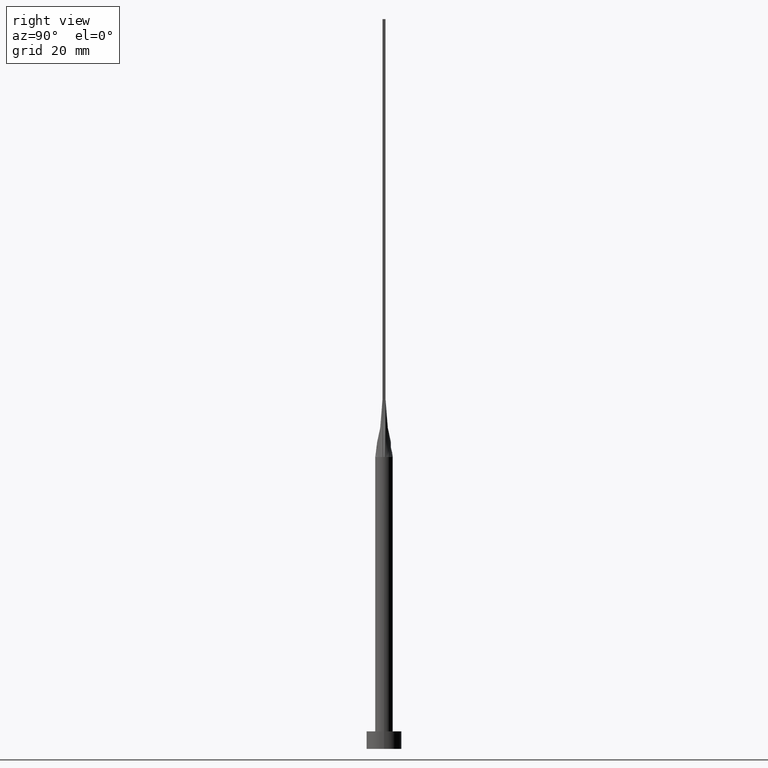
[diagram: clean part render]
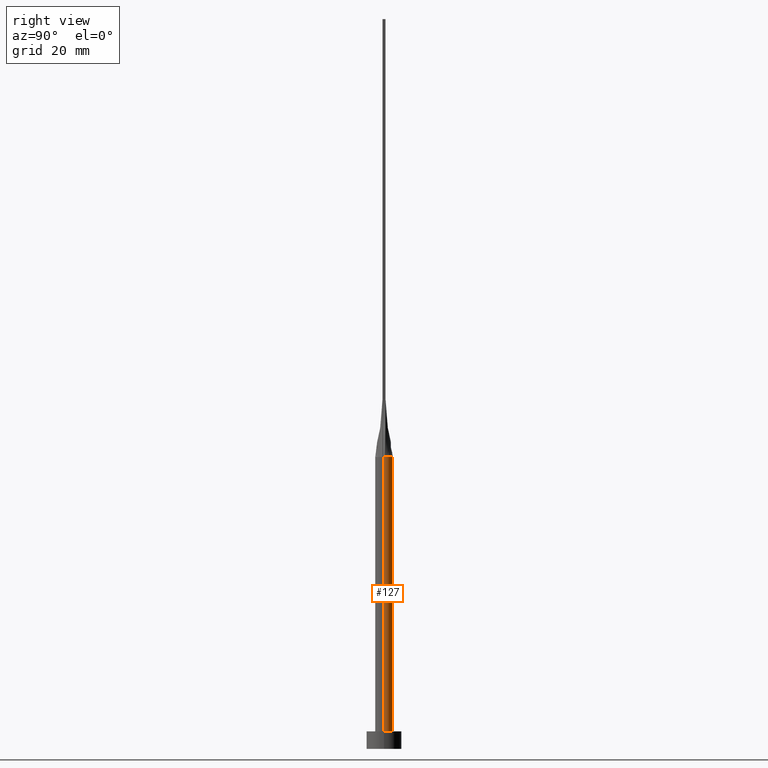
[diagram: same view with one face highlighted and labeled with its STEP entity id]
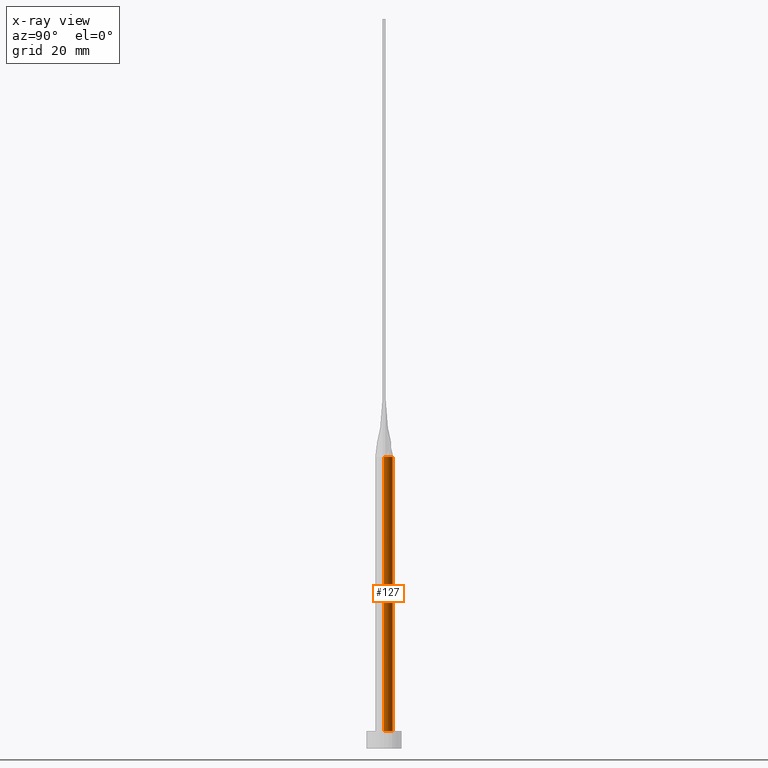
[diagram: x-ray of the same camera — body ghosted, the highlighted face saturated]
A machine part, right view. The second image highlights one B-rep face of the part: STEP entity #127.
The next image is the same camera in x-ray: the body ghosted, the highlighted face saturated — about 0% of this face is hidden behind the body in this view.
In plain terms, the highlighted cylindrical surface (edge-blend (fillet) strip) has radius 1.5 mm, axis along (-0, -0, -1).
Its self-contained STEP definition (entity closure, byte-faithful):
#2 = CARTESIAN_POINT ( 'NONE',  ( -1.499909062348296462, -1.026848616785427865E-15, 50.00000000000000000 ) ) ;
#10 = EDGE_CURVE ( 'NONE', #381, #476, #571, .T. ) ;
#11 = AXIS2_PLACEMENT_3D ( 'NONE', #74, #467, #373 ) ;
#24 = CARTESIAN_POINT ( 'NONE',  ( -1.193588737715979731, 0.9257784320005616463, 49.99999999999999289 ) ) ;
#26 = CARTESIAN_POINT ( 'NONE',  ( 0.000000000000000000, 0.000000000000000000, 50.00000000000000000 ) ) ;
#28 = DIRECTION ( 'NONE',  ( -1.000000000000000000, 0.000000000000000000, 0.000000000000000000 ) ) ;
#29 = CARTESIAN_POINT ( 'NONE',  ( 1.476765312825354837, 0.2637079867918904474, 50.00000000000000000 ) ) ;
#30 = DIRECTION ( 'NONE',  ( 0.000000000000000000, 0.000000000000000000, 1.000000000000000000 ) ) ;
#31 = CYLINDRICAL_SURFACE ( 'NONE', #258, 1.500000000000000222 ) ;
#37 = ORIENTED_EDGE ( 'NONE', *, *, #217, .F. ) ;
#50 = EDGE_CURVE ( 'NONE', #210, #381, #338, .T. ) ;
#71 = CARTESIAN_POINT ( 'NONE',  ( 1.455009719257779111, 0.3848231641531748570, 50.00000000000000711 ) ) ;
#74 = CARTESIAN_POINT ( 'NONE',  ( 0.000000000000000000, 0.000000000000000000, 50.00000000000000000 ) ) ;
#77 = CARTESIAN_POINT ( 'NONE',  ( -1.476774769252511055, 0.2637095436881764510, 50.00000000000000000 ) ) ;
#108 = CARTESIAN_POINT ( 'NONE',  ( -1.285860877433235183, 0.7868275653575075301, 50.00000000000000000 ) ) ;
#109 = EDGE_CURVE ( 'NONE', #114, #210, #453, .T. ) ;
#114 = VERTEX_POINT ( 'NONE', #336 ) ;
#116 = FACE_OUTER_BOUND ( 'NONE', #552, .T. ) ;
#117 = DIRECTION ( 'NONE',  ( 1.000000000000000000, 0.000000000000000000, 0.000000000000000000 ) ) ;
#127 = ADVANCED_FACE ( 'NONE', ( #116 ), #31, .T. ) ;
#144 = ORIENTED_EDGE ( 'NONE', *, *, #249, .T. ) ;
#162 = CARTESIAN_POINT ( 'NONE',  ( 1.416287091352355976, 0.5163978007200227260, 50.00000000000000711 ) ) ;
#176 = VERTEX_POINT ( 'NONE', #471 ) ;
#178 = ORIENTED_EDGE ( 'NONE', *, *, #109, .F. ) ;
#191 = VECTOR ( 'NONE', #215, 1000.000000000000000 ) ;
#201 = AXIS2_PLACEMENT_3D ( 'NONE', #438, #30, #209 ) ;
#202 = CARTESIAN_POINT ( 'NONE',  ( 0.7852726932053988307, 1.293660568283136358, 50.00000000000000711 ) ) ;
#209 = DIRECTION ( 'NONE',  ( 1.000000000000000000, 0.000000000000000000, 0.000000000000000000 ) ) ;
#210 = VERTEX_POINT ( 'NONE', #347 ) ;
#215 = DIRECTION ( 'NONE',  ( -0.000000000000000000, -0.000000000000000000, -1.000000000000000000 ) ) ;
#217 = EDGE_CURVE ( 'NONE', #476, #304, #396, .T. ) ;
#219 = CARTESIAN_POINT ( 'NONE',  ( -1.476774769252511055, 0.2637095436881764510, 50.00000000000000000 ) ) ;
#246 = CARTESIAN_POINT ( 'NONE',  ( 1.285860877433235405, 0.7868275653575075301, 49.99999999999999289 ) ) ;
#248 = CARTESIAN_POINT ( 'NONE',  ( -0.7852726932053990527, 1.293660568283136136, 50.00000000000000711 ) ) ;
#249 = EDGE_CURVE ( 'NONE', #114, #176, #581, .T. ) ;
#251 = CARTESIAN_POINT ( 'NONE',  ( 0.4178861784692547432, 1.454504042781961770, 50.00000000000000711 ) ) ;
#257 = CARTESIAN_POINT ( 'NONE',  ( 1.500000000000000222, 1.836970198721030181E-16, 50.00000000000000000 ) ) ;
#258 = AXIS2_PLACEMENT_3D ( 'NONE', #551, #514, #28 ) ;
#302 = CARTESIAN_POINT ( 'NONE',  ( -0.9436169880431073409, 1.179536671679307647, 50.00000000000000000 ) ) ;
#304 = VERTEX_POINT ( 'NONE', #358 ) ;
#311 = DIRECTION ( 'NONE',  ( -0.000000000000000000, -0.000000000000000000, -1.000000000000000000 ) ) ;
#315 = AXIS2_PLACEMENT_3D ( 'NONE', #26, #337, #117 ) ;
#329 = CARTESIAN_POINT ( 'NONE',  ( -1.416287091352355976, 0.5163978007200225040, 50.00000000000000711 ) ) ;
#334 = CARTESIAN_POINT ( 'NONE',  ( 0.9436169880431070078, 1.179536671679307869, 50.00000000000001421 ) ) ;
#336 = CARTESIAN_POINT ( 'NONE',  ( 1.499909062348296462, 3.515891419768138559E-16, 50.00000000000000000 ) ) ;
#337 = DIRECTION ( 'NONE',  ( 0.000000000000000000, 0.000000000000000000, 1.000000000000000000 ) ) ;
#338 = B_SPLINE_CURVE_WITH_KNOTS ( 'NONE', 3,
 ( #29, #71, #162, #246, #428, #334, #202, #251, #433, #378, #561, #248, #302, #24, #108, #329, #425, #77 ),
 .UNSPECIFIED., .F., .F.,
 ( 4, 2, 2, 2, 2, 2, 2, 2, 4 ),
 ( 0.000000000000000000, 0.1249999999999999167, 0.2499999999999998335, 0.3749999999999998335, 0.4999999999999998890, 0.6249999999999998890, 0.7499999999999998890, 0.8750000000000000000, 1.000000000000000000 ),
 .UNSPECIFIED. ) ;
#347 = CARTESIAN_POINT ( 'NONE',  ( 1.476765312825354837, 0.2637079867918904474, 50.00000000000000000 ) ) ;
#354 = ORIENTED_EDGE ( 'NONE', *, *, #50, .F. ) ;
#357 = ORIENTED_EDGE ( 'NONE', *, *, #512, .T. ) ;
#358 = CARTESIAN_POINT ( 'NONE',  ( -1.500000000000000222, 0.000000000000000000, 3.000000000000000000 ) ) ;
#373 = DIRECTION ( 'NONE',  ( 1.000000000000000000, 0.000000000000000000, 0.000000000000000000 ) ) ;
#378 = CARTESIAN_POINT ( 'NONE',  ( -0.2093118330951410921, 1.500000000000000222, 50.00000000000001421 ) ) ;
#381 = VERTEX_POINT ( 'NONE', #219 ) ;
#396 = LINE ( 'NONE', #573, #419 ) ;
#419 = VECTOR ( 'NONE', #311, 1000.000000000000000 ) ;
#425 = CARTESIAN_POINT ( 'NONE',  ( -1.455009719257779111, 0.3848231641531745795, 50.00000000000000711 ) ) ;
#428 = CARTESIAN_POINT ( 'NONE',  ( 1.193588737715979509, 0.9257784320005622014, 50.00000000000000000 ) ) ;
#433 = CARTESIAN_POINT ( 'NONE',  ( 0.2093118330951408979, 1.500000000000000666, 50.00000000000000711 ) ) ;
#438 = CARTESIAN_POINT ( 'NONE',  ( 0.000000000000000000, 0.000000000000000000, 3.000000000000000000 ) ) ;
#453 = CIRCLE ( 'NONE', #11, 1.500000000000000222 ) ;
#467 = DIRECTION ( 'NONE',  ( 0.000000000000000000, 0.000000000000000000, 1.000000000000000000 ) ) ;
#471 = CARTESIAN_POINT ( 'NONE',  ( 1.500000000000000222, 1.836970198721030181E-16, 3.000000000000000000 ) ) ;
#476 = VERTEX_POINT ( 'NONE', #2 ) ;
#511 = ORIENTED_EDGE ( 'NONE', *, *, #10, .F. ) ;
#512 = EDGE_CURVE ( 'NONE', #176, #304, #543, .T. ) ;
#514 = DIRECTION ( 'NONE',  ( -0.000000000000000000, -0.000000000000000000, -1.000000000000000000 ) ) ;
#543 = CIRCLE ( 'NONE', #201, 1.500000000000000222 ) ;
#551 = CARTESIAN_POINT ( 'NONE',  ( 0.000000000000000000, 0.000000000000000000, 50.00000000000000000 ) ) ;
#552 = EDGE_LOOP ( 'NONE', ( #178, #144, #357, #37, #511, #354 ) ) ;
#561 = CARTESIAN_POINT ( 'NONE',  ( -0.4178861784692550208, 1.454504042781961326, 50.00000000000000000 ) ) ;
#571 = CIRCLE ( 'NONE', #315, 1.500000000000000222 ) ;
#573 = CARTESIAN_POINT ( 'NONE',  ( -1.500000000000000222, 0.000000000000000000, 50.00000000000000000 ) ) ;
#581 = LINE ( 'NONE', #257, #191 ) ;